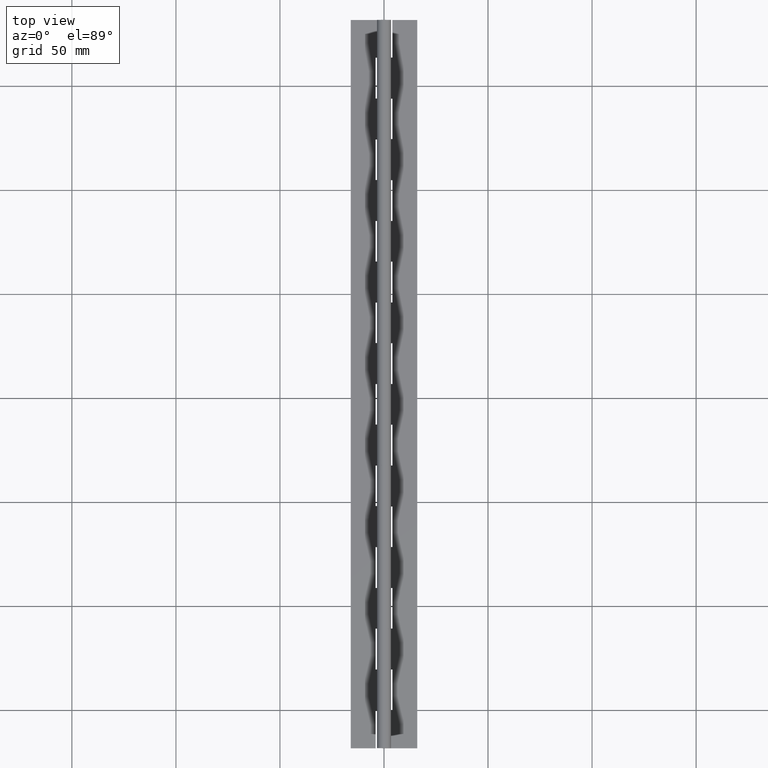
[diagram: clean part render]
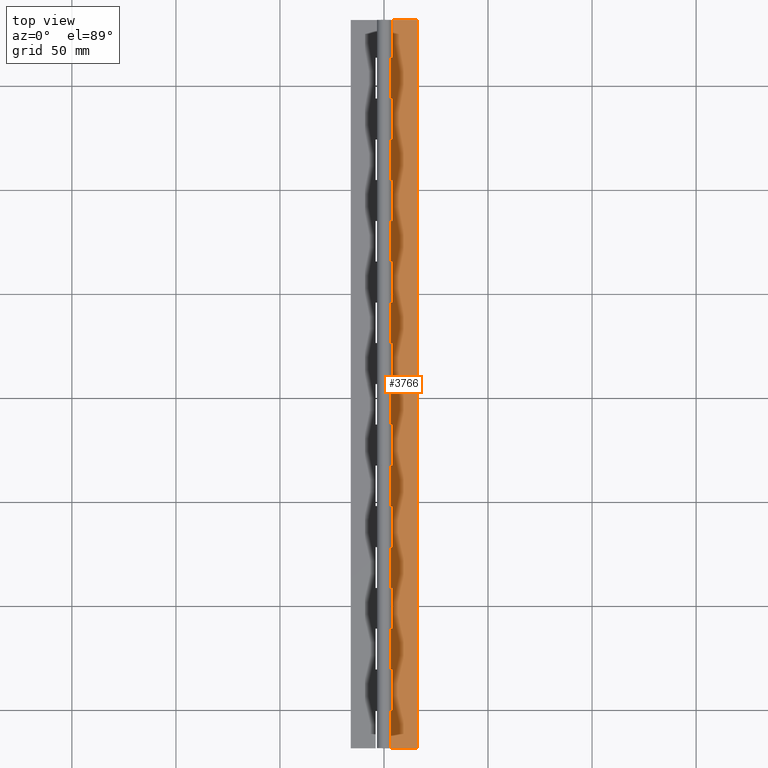
[diagram: same view with one face highlighted and labeled with its STEP entity id]
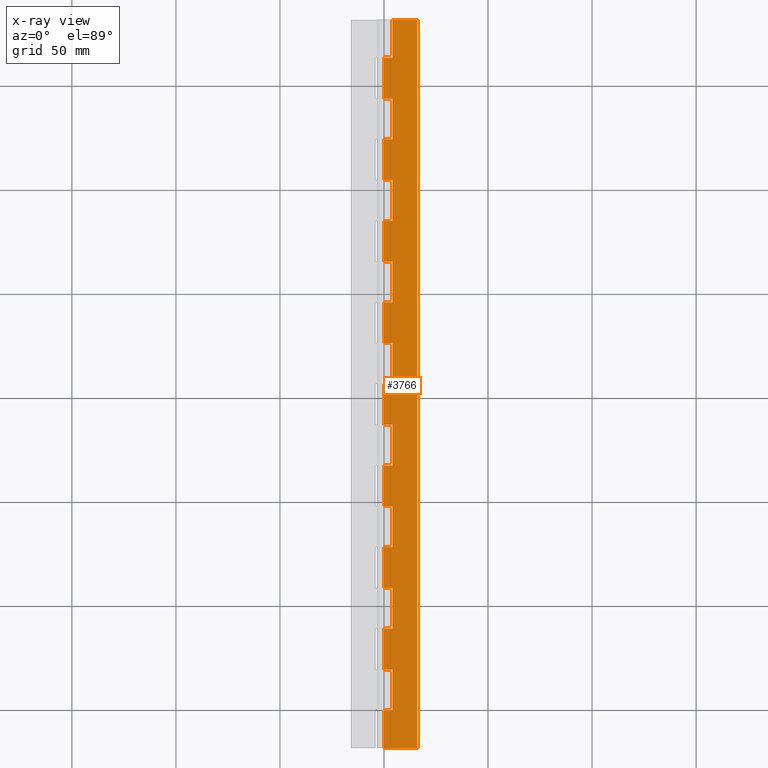
[diagram: x-ray of the same camera — body ghosted, the highlighted face saturated]
A machine part, top view. The second image highlights one B-rep face of the part: STEP entity #3766.
The next image is the same camera in x-ray: the body ghosted, the highlighted face saturated — about 0% of this face is hidden behind the body in this view.
In plain terms, the highlighted planar face has unit normal (-0, 0, -1).
Its self-contained STEP definition (entity closure, byte-faithful):
#13 = VECTOR ( 'NONE', #875, 1000.000000000000000 ) ;
#16 = CARTESIAN_POINT ( 'NONE',  ( 0.0000000000000000000, 58.80000000000001800, -1.750002187502756900 ) ) ;
#32 = CARTESIAN_POINT ( 'NONE',  ( 0.0000000000000000000, 215.6000000000000500, -1.750002187502756900 ) ) ;
#38 = DIRECTION ( 'NONE',  ( -1.000000000000000000, 0.0000000000000000000, 0.0000000000000000000 ) ) ;
#39 = ORIENTED_EDGE ( 'NONE', *, *, #408, .T. ) ;
#41 = CARTESIAN_POINT ( 'NONE',  ( 0.0000000000000000000, 39.20000000000001000, -1.750002187502756900 ) ) ;
#85 = CARTESIAN_POINT ( 'NONE',  ( 3.999999999999996400, 156.8000000000000100, -1.750002187502756900 ) ) ;
#87 = DIRECTION ( 'NONE',  ( -1.770125995894701000E-016, -1.000000000000000000, 4.797936125805254900E-033 ) ) ;
#99 = VERTEX_POINT ( 'NONE', #365 ) ;
#112 = DIRECTION ( 'NONE',  ( 1.000000000000000000, 0.0000000000000000000, -2.710505431213761100E-017 ) ) ;
#118 = LINE ( 'NONE', #2478, #3389 ) ;
#128 = CARTESIAN_POINT ( 'NONE',  ( 16.00000000000000000, -18.19999999999999900, -1.750002187502757400 ) ) ;
#129 = EDGE_CURVE ( 'NONE', #746, #3970, #3796, .T. ) ;
#173 = LINE ( 'NONE', #3303, #929 ) ;
#189 = VECTOR ( 'NONE', #1377, 1000.000000000000000 ) ;
#204 = VERTEX_POINT ( 'NONE', #1120 ) ;
#207 = EDGE_CURVE ( 'NONE', #1440, #3505, #440, .T. ) ;
#209 = LINE ( 'NONE', #2056, #1172 ) ;
#245 = VECTOR ( 'NONE', #3960, 1000.000000000000000 ) ;
#265 = CARTESIAN_POINT ( 'NONE',  ( 2.143125705451388300E-016, 137.2000000000000200, -1.750002187502756900 ) ) ;
#276 = LINE ( 'NONE', #1287, #189 ) ;
#285 = DIRECTION ( 'NONE',  ( -0.0000000000000000000, -1.000000000000000000, -0.0000000000000000000 ) ) ;
#287 = VERTEX_POINT ( 'NONE', #128 ) ;
#343 = CARTESIAN_POINT ( 'NONE',  ( 2.143125705451388300E-016, 78.40000000000002000, -1.750002187502756900 ) ) ;
#344 = VECTOR ( 'NONE', #87, 1000.000000000000000 ) ;
#355 = LINE ( 'NONE', #1726, #2000 ) ;
#357 = DIRECTION ( 'NONE',  ( -1.000000000000000000, 0.0000000000000000000, 2.710505431213761100E-017 ) ) ;
#365 = CARTESIAN_POINT ( 'NONE',  ( 0.0000000000000000000, 0.0000000000000000000, -1.750002187502757400 ) ) ;
#383 = ORIENTED_EDGE ( 'NONE', *, *, #1843, .T. ) ;
#391 = VECTOR ( 'NONE', #2022, 1000.000000000000000 ) ;
#399 = VERTEX_POINT ( 'NONE', #3004 ) ;
#408 = EDGE_CURVE ( 'NONE', #2912, #467, #3751, .T. ) ;
#420 = CARTESIAN_POINT ( 'NONE',  ( 16.00000000000000000, 313.6000000000000200, -1.750002187502757400 ) ) ;
#436 = DIRECTION ( 'NONE',  ( 1.000000000000000000, 0.0000000000000000000, -2.710505431213761100E-017 ) ) ;
#438 = EDGE_LOOP ( 'NONE', ( #1829, #2810, #1786, #3102, #529, #1121, #39, #497, #2566, #1819, #1918, #3976, #1984, #3416, #3629, #2251, #3314, #2853, #3130, #2191, #383, #501, #1783, #1929, #3358, #3188, #2276, #751, #3228, #645, #2054, #1204, #4054, #2330, #573, #1002, #1837, #1388 ) ) ;
#440 = LINE ( 'NONE', #1159, #2080 ) ;
#453 = LINE ( 'NONE', #2355, #344 ) ;
#462 = VERTEX_POINT ( 'NONE', #577 ) ;
#467 = VERTEX_POINT ( 'NONE', #1870 ) ;
#497 = ORIENTED_EDGE ( 'NONE', *, *, #3202, .T. ) ;
#499 = VERTEX_POINT ( 'NONE', #1198 ) ;
#500 = VERTEX_POINT ( 'NONE', #3397 ) ;
#501 = ORIENTED_EDGE ( 'NONE', *, *, #1758, .T. ) ;
#510 = VECTOR ( 'NONE', #1023, 1000.000000000000000 ) ;
#514 = LINE ( 'NONE', #3885, #3767 ) ;
#521 = LINE ( 'NONE', #2145, #2967 ) ;
#529 = ORIENTED_EDGE ( 'NONE', *, *, #1889, .T. ) ;
#549 = LINE ( 'NONE', #1990, #3090 ) ;
#573 = ORIENTED_EDGE ( 'NONE', *, *, #1439, .T. ) ;
#577 = CARTESIAN_POINT ( 'NONE',  ( 4.000000000000000000, 58.80000000000000400, -1.750002187502757200 ) ) ;
#578 = EDGE_CURVE ( 'NONE', #462, #3664, #3170, .T. ) ;
#645 = ORIENTED_EDGE ( 'NONE', *, *, #578, .T. ) ;
#670 = CARTESIAN_POINT ( 'NONE',  ( 2.143125705451388300E-016, 235.2000000000000200, -1.750002187502756900 ) ) ;
#679 = CARTESIAN_POINT ( 'NONE',  ( 2.143125705451388300E-016, 294.0000000000000600, -1.750002187502756900 ) ) ;
#699 = VERTEX_POINT ( 'NONE', #920 ) ;
#737 = VECTOR ( 'NONE', #1310, 1000.000000000000000 ) ;
#746 = VERTEX_POINT ( 'NONE', #2585 ) ;
#749 = DIRECTION ( 'NONE',  ( -1.770125995894701000E-016, -1.000000000000000000, 4.797936125805254900E-033 ) ) ;
#751 = ORIENTED_EDGE ( 'NONE', *, *, #776, .T. ) ;
#757 = DIRECTION ( 'NONE',  ( 1.000000000000000000, 0.0000000000000000000, -2.710505431213761100E-017 ) ) ;
#769 = DIRECTION ( 'NONE',  ( -1.000000000000000000, 0.0000000000000000000, 2.710505431213761100E-017 ) ) ;
#776 = EDGE_CURVE ( 'NONE', #3919, #833, #897, .T. ) ;
#787 = DIRECTION ( 'NONE',  ( -0.0000000000000000000, -1.000000000000000000, -0.0000000000000000000 ) ) ;
#827 = CARTESIAN_POINT ( 'NONE',  ( 2.143134577426118000E-016, 313.6000000000000200, -1.750002187502757400 ) ) ;
#833 = VERTEX_POINT ( 'NONE', #3155 ) ;
#853 = VERTEX_POINT ( 'NONE', #2049 ) ;
#862 = DIRECTION ( 'NONE',  ( -0.0000000000000000000, -1.000000000000000000, -0.0000000000000000000 ) ) ;
#875 = DIRECTION ( 'NONE',  ( -1.000000000000000000, 0.0000000000000000000, 2.710505431213761100E-017 ) ) ;
#897 = LINE ( 'NONE', #2574, #1864 ) ;
#908 = EDGE_CURVE ( 'NONE', #99, #1060, #2941, .T. ) ;
#920 = CARTESIAN_POINT ( 'NONE',  ( 16.00000000000000000, 331.8000000000000100, -1.750002187502757400 ) ) ;
#925 = CARTESIAN_POINT ( 'NONE',  ( 2.143125705451388300E-016, 156.8000000000000100, -1.750002187502756900 ) ) ;
#929 = VECTOR ( 'NONE', #436, 1000.000000000000000 ) ;
#934 = EDGE_CURVE ( 'NONE', #204, #1440, #2846, .T. ) ;
#963 = CARTESIAN_POINT ( 'NONE',  ( 0.0000000000000000000, 0.0000000000000000000, -1.750002187502756900 ) ) ;
#973 = LINE ( 'NONE', #3690, #3385 ) ;
#1002 = ORIENTED_EDGE ( 'NONE', *, *, #908, .T. ) ;
#1015 = CARTESIAN_POINT ( 'NONE',  ( 2.143134577426118000E-016, 313.6000000000000200, -1.750002187502757400 ) ) ;
#1018 = CARTESIAN_POINT ( 'NONE',  ( 0.0000000000000000000, 313.6000000000000200, -1.750002187502756900 ) ) ;
#1023 = DIRECTION ( 'NONE',  ( -0.0000000000000000000, -1.000000000000000000, -0.0000000000000000000 ) ) ;
#1029 = DIRECTION ( 'NONE',  ( -1.000000000000000000, 0.0000000000000000000, 2.710505431213761100E-017 ) ) ;
#1037 = CARTESIAN_POINT ( 'NONE',  ( 2.143134577426118000E-016, 313.6000000000000200, -1.750002187502757400 ) ) ;
#1041 = CARTESIAN_POINT ( 'NONE',  ( 4.000000000000010700, 313.6000000000000200, -1.750002187502757200 ) ) ;
#1045 = LINE ( 'NONE', #1015, #3444 ) ;
#1058 = VECTOR ( 'NONE', #2837, 1000.000000000000000 ) ;
#1059 = VERTEX_POINT ( 'NONE', #1397 ) ;
#1060 = VERTEX_POINT ( 'NONE', #4009 ) ;
#1080 = DIRECTION ( 'NONE',  ( 1.000000000000000000, 0.0000000000000000000, -2.710505431213761100E-017 ) ) ;
#1088 = EDGE_CURVE ( 'NONE', #833, #462, #1961, .T. ) ;
#1090 = VECTOR ( 'NONE', #285, 1000.000000000000000 ) ;
#1092 = EDGE_CURVE ( 'NONE', #3849, #1383, #2702, .T. ) ;
#1120 = CARTESIAN_POINT ( 'NONE',  ( 2.143125705451388300E-016, 215.6000000000000500, -1.750002187502756900 ) ) ;
#1121 = ORIENTED_EDGE ( 'NONE', *, *, #1153, .T. ) ;
#1122 = VECTOR ( 'NONE', #2980, 1000.000000000000000 ) ;
#1153 = EDGE_CURVE ( 'NONE', #499, #2912, #3404, .T. ) ;
#1159 = CARTESIAN_POINT ( 'NONE',  ( 4.000000000000017800, 313.6000000000000200, -1.750002187502757200 ) ) ;
#1172 = VECTOR ( 'NONE', #749, 1000.000000000000000 ) ;
#1198 = CARTESIAN_POINT ( 'NONE',  ( 4.000000000000000000, 294.0000000000000600, -1.750002187502757200 ) ) ;
#1199 = DIRECTION ( 'NONE',  ( -1.770125995894701000E-016, -1.000000000000000000, 4.797936125805254900E-033 ) ) ;
#1204 = ORIENTED_EDGE ( 'NONE', *, *, #3206, .T. ) ;
#1220 = LINE ( 'NONE', #420, #1122 ) ;
#1240 = CARTESIAN_POINT ( 'NONE',  ( 2.143125705451388300E-016, 176.4000000000000300, -1.750002187502756900 ) ) ;
#1241 = EDGE_CURVE ( 'NONE', #1690, #3849, #3211, .T. ) ;
#1287 = CARTESIAN_POINT ( 'NONE',  ( 2.143134577426118000E-016, 313.6000000000000200, -1.750002187502757400 ) ) ;
#1294 = DIRECTION ( 'NONE',  ( -0.0000000000000000000, -1.000000000000000000, -0.0000000000000000000 ) ) ;
#1310 = DIRECTION ( 'NONE',  ( -1.000000000000000000, 0.0000000000000000000, 2.710505431213761100E-017 ) ) ;
#1312 = LINE ( 'NONE', #3647, #245 ) ;
#1318 = CARTESIAN_POINT ( 'NONE',  ( 4.000000000000000000, 331.8000000000000100, -1.750002187502757400 ) ) ;
#1345 = EDGE_CURVE ( 'NONE', #3576, #3555, #276, .T. ) ;
#1361 = VECTOR ( 'NONE', #1029, 1000.000000000000000 ) ;
#1371 = EDGE_CURVE ( 'NONE', #3925, #204, #1045, .T. ) ;
#1377 = DIRECTION ( 'NONE',  ( -0.0000000000000000000, -1.000000000000000000, -0.0000000000000000000 ) ) ;
#1383 = VERTEX_POINT ( 'NONE', #3771 ) ;
#1385 = VECTOR ( 'NONE', #2120, 1000.000000000000000 ) ;
#1388 = ORIENTED_EDGE ( 'NONE', *, *, #3069, .F. ) ;
#1397 = CARTESIAN_POINT ( 'NONE',  ( 2.143125705451388300E-016, 39.20000000000001000, -1.750002187502756900 ) ) ;
#1411 = DIRECTION ( 'NONE',  ( 1.000000000000000000, 0.0000000000000000000, -2.710505431213761100E-017 ) ) ;
#1417 = DIRECTION ( 'NONE',  ( -1.000000000000000000, 0.0000000000000000000, 2.710505431213761100E-017 ) ) ;
#1439 = EDGE_CURVE ( 'NONE', #3552, #99, #4077, .T. ) ;
#1440 = VERTEX_POINT ( 'NONE', #3441 ) ;
#1467 = VECTOR ( 'NONE', #769, 1000.000000000000000 ) ;
#1477 = CARTESIAN_POINT ( 'NONE',  ( 0.0000000000000000000, 117.6000000000000100, -1.750002187502756900 ) ) ;
#1515 = DIRECTION ( 'NONE',  ( -1.770125995894701000E-016, -1.000000000000000000, 4.797936125805254900E-033 ) ) ;
#1526 = CARTESIAN_POINT ( 'NONE',  ( 2.143134577426118000E-016, 331.8000000000000100, -1.750002187502757400 ) ) ;
#1548 = CARTESIAN_POINT ( 'NONE',  ( 3.999999999999996400, 196.0000000000000300, -1.750002187502756900 ) ) ;
#1553 = DIRECTION ( 'NONE',  ( 1.000000000000000000, 0.0000000000000000000, 0.0000000000000000000 ) ) ;
#1630 = LINE ( 'NONE', #41, #3094 ) ;
#1655 = EDGE_CURVE ( 'NONE', #3945, #699, #4030, .T. ) ;
#1656 = CARTESIAN_POINT ( 'NONE',  ( 3.999999999999996400, 274.4000000000000300, -1.750002187502756900 ) ) ;
#1661 = PLANE ( 'NONE',  #2638 ) ;
#1690 = VERTEX_POINT ( 'NONE', #1831 ) ;
#1691 = CARTESIAN_POINT ( 'NONE',  ( 3.999999999999996400, 235.2000000000000200, -1.750002187502756900 ) ) ;
#1703 = CARTESIAN_POINT ( 'NONE',  ( 2.143134577426118000E-016, 313.6000000000000200, -1.750002187502757400 ) ) ;
#1726 = CARTESIAN_POINT ( 'NONE',  ( 0.0000000000000000000, 137.2000000000000200, -1.750002187502756900 ) ) ;
#1758 = EDGE_CURVE ( 'NONE', #399, #1690, #3648, .T. ) ;
#1766 = VECTOR ( 'NONE', #1947, 1000.000000000000000 ) ;
#1783 = ORIENTED_EDGE ( 'NONE', *, *, #1241, .T. ) ;
#1786 = ORIENTED_EDGE ( 'NONE', *, *, #2804, .T. ) ;
#1791 = CARTESIAN_POINT ( 'NONE',  ( 0.0000000000000000000, 156.8000000000000100, -1.750002187502756900 ) ) ;
#1819 = ORIENTED_EDGE ( 'NONE', *, *, #2710, .T. ) ;
#1829 = ORIENTED_EDGE ( 'NONE', *, *, #1655, .F. ) ;
#1831 = CARTESIAN_POINT ( 'NONE',  ( 3.999999999999996400, 117.6000000000000100, -1.750002187502756900 ) ) ;
#1833 = VECTOR ( 'NONE', #1080, 1000.000000000000000 ) ;
#1837 = ORIENTED_EDGE ( 'NONE', *, *, #3745, .F. ) ;
#1843 = EDGE_CURVE ( 'NONE', #3555, #399, #355, .T. ) ;
#1864 = VECTOR ( 'NONE', #1942, 1000.000000000000000 ) ;
#1870 = CARTESIAN_POINT ( 'NONE',  ( 2.143125705451388300E-016, 274.4000000000000300, -1.750002187502756900 ) ) ;
#1889 = EDGE_CURVE ( 'NONE', #3970, #499, #173, .T. ) ;
#1918 = ORIENTED_EDGE ( 'NONE', *, *, #2003, .T. ) ;
#1929 = ORIENTED_EDGE ( 'NONE', *, *, #1092, .T. ) ;
#1939 = CARTESIAN_POINT ( 'NONE',  ( 2.143134577426118000E-016, 313.6000000000000200, -1.750002187502757400 ) ) ;
#1942 = DIRECTION ( 'NONE',  ( -0.0000000000000000000, -1.000000000000000000, -0.0000000000000000000 ) ) ;
#1947 = DIRECTION ( 'NONE',  ( -1.770125995894701000E-016, -1.000000000000000000, 4.797936125805254900E-033 ) ) ;
#1961 = LINE ( 'NONE', #16, #2798 ) ;
#1984 = ORIENTED_EDGE ( 'NONE', *, *, #934, .T. ) ;
#1987 = CARTESIAN_POINT ( 'NONE',  ( 2.143134577426118000E-016, 313.6000000000000200, -1.750002187502757400 ) ) ;
#1990 = CARTESIAN_POINT ( 'NONE',  ( 16.00000000000000000, -18.19999999999999900, -1.750002187502757400 ) ) ;
#2000 = VECTOR ( 'NONE', #112, 1000.000000000000000 ) ;
#2003 = EDGE_CURVE ( 'NONE', #2959, #3925, #521, .T. ) ;
#2004 = DIRECTION ( 'NONE',  ( -1.000000000000000000, 0.0000000000000000000, 2.710505431213761100E-017 ) ) ;
#2007 = DIRECTION ( 'NONE',  ( -1.000000000000000000, 0.0000000000000000000, 2.710505431213761100E-017 ) ) ;
#2013 = VECTOR ( 'NONE', #2753, 1000.000000000000000 ) ;
#2022 = DIRECTION ( 'NONE',  ( -0.0000000000000000000, -1.000000000000000000, -0.0000000000000000000 ) ) ;
#2035 = EDGE_CURVE ( 'NONE', #1383, #2678, #118, .T. ) ;
#2046 = CARTESIAN_POINT ( 'NONE',  ( 2.143125705451388300E-016, 254.8000000000000400, -1.750002187502756900 ) ) ;
#2049 = CARTESIAN_POINT ( 'NONE',  ( 2.143125705451388300E-016, 196.0000000000000300, -1.750002187502756900 ) ) ;
#2052 = CARTESIAN_POINT ( 'NONE',  ( 3.999999999999996400, 313.6000000000000200, -1.750002187502756900 ) ) ;
#2054 = ORIENTED_EDGE ( 'NONE', *, *, #3965, .T. ) ;
#2056 = CARTESIAN_POINT ( 'NONE',  ( 3.999999999999996400, 313.6000000000000200, -1.750002187502756900 ) ) ;
#2058 = EDGE_CURVE ( 'NONE', #500, #3919, #3298, .T. ) ;
#2080 = VECTOR ( 'NONE', #1199, 1000.000000000000000 ) ;
#2120 = DIRECTION ( 'NONE',  ( -1.000000000000000000, 0.0000000000000000000, 2.710505431213761100E-017 ) ) ;
#2128 = VECTOR ( 'NONE', #757, 1000.000000000000000 ) ;
#2130 = VERTEX_POINT ( 'NONE', #1240 ) ;
#2144 = LINE ( 'NONE', #1703, #391 ) ;
#2145 = CARTESIAN_POINT ( 'NONE',  ( 0.0000000000000000000, 235.2000000000000200, -1.750002187502756900 ) ) ;
#2165 = CARTESIAN_POINT ( 'NONE',  ( 4.000000000000045300, 313.6000000000000200, -1.750002187502757200 ) ) ;
#2182 = FACE_OUTER_BOUND ( 'NONE', #438, .T. ) ;
#2191 = ORIENTED_EDGE ( 'NONE', *, *, #1345, .T. ) ;
#2228 = CARTESIAN_POINT ( 'NONE',  ( 0.0000000000000000000, 254.8000000000000400, -1.750002187502756900 ) ) ;
#2251 = ORIENTED_EDGE ( 'NONE', *, *, #2470, .T. ) ;
#2270 = VECTOR ( 'NONE', #862, 1000.000000000000000 ) ;
#2276 = ORIENTED_EDGE ( 'NONE', *, *, #2058, .T. ) ;
#2330 = ORIENTED_EDGE ( 'NONE', *, *, #2368, .T. ) ;
#2341 = LINE ( 'NONE', #1791, #1385 ) ;
#2348 = EDGE_CURVE ( 'NONE', #4045, #3576, #2341, .T. ) ;
#2349 = CARTESIAN_POINT ( 'NONE',  ( 4.000000000000000000, 254.8000000000000400, -1.750002187502757200 ) ) ;
#2355 = CARTESIAN_POINT ( 'NONE',  ( 4.000000000000024000, 313.6000000000000200, -1.750002187502757200 ) ) ;
#2366 = VECTOR ( 'NONE', #1515, 1000.000000000000000 ) ;
#2368 = EDGE_CURVE ( 'NONE', #3707, #3552, #3862, .T. ) ;
#2470 = EDGE_CURVE ( 'NONE', #853, #2130, #973, .T. ) ;
#2478 = CARTESIAN_POINT ( 'NONE',  ( 0.0000000000000000000, 98.00000000000002800, -1.750002187502756900 ) ) ;
#2536 = LINE ( 'NONE', #1041, #4059 ) ;
#2566 = ORIENTED_EDGE ( 'NONE', *, *, #3588, .T. ) ;
#2567 = LINE ( 'NONE', #2691, #1833 ) ;
#2574 = CARTESIAN_POINT ( 'NONE',  ( 2.143134577426118000E-016, 313.6000000000000200, -1.750002187502757400 ) ) ;
#2577 = CARTESIAN_POINT ( 'NONE',  ( 4.000000000000000000, 19.60000000000000100, -1.750002187502757200 ) ) ;
#2585 = CARTESIAN_POINT ( 'NONE',  ( 2.143125705451388300E-016, 313.6000000000000200, -1.750002187502756900 ) ) ;
#2636 = DIRECTION ( 'NONE',  ( -1.770125995894701000E-016, -1.000000000000000000, 4.797936125805254900E-033 ) ) ;
#2638 = AXIS2_PLACEMENT_3D ( 'NONE', #1018, #3832, #2004 ) ;
#2678 = VERTEX_POINT ( 'NONE', #3217 ) ;
#2682 = CARTESIAN_POINT ( 'NONE',  ( 0.0000000000000000000, 19.60000000000000500, -1.750002187502756900 ) ) ;
#2691 = CARTESIAN_POINT ( 'NONE',  ( 0.0000000000000000000, 176.4000000000000300, -1.750002187502756900 ) ) ;
#2702 = LINE ( 'NONE', #1939, #1090 ) ;
#2710 = EDGE_CURVE ( 'NONE', #2724, #2959, #2536, .T. ) ;
#2724 = VERTEX_POINT ( 'NONE', #2349 ) ;
#2745 = DIRECTION ( 'NONE',  ( -1.770125995894701000E-016, -1.000000000000000000, 4.797936125805254900E-033 ) ) ;
#2750 = DIRECTION ( 'NONE',  ( -1.000000000000000000, 0.0000000000000000000, 2.710505431213761100E-017 ) ) ;
#2753 = DIRECTION ( 'NONE',  ( -1.770125995894701000E-016, -1.000000000000000000, 4.797936125805254900E-033 ) ) ;
#2782 = VERTEX_POINT ( 'NONE', #2052 ) ;
#2783 = CARTESIAN_POINT ( 'NONE',  ( 4.000000000000031100, 313.6000000000000200, -1.750002187502757200 ) ) ;
#2788 = DIRECTION ( 'NONE',  ( 1.000000000000000000, 0.0000000000000000000, -2.710505431213761100E-017 ) ) ;
#2798 = VECTOR ( 'NONE', #3185, 1000.000000000000000 ) ;
#2804 = EDGE_CURVE ( 'NONE', #2782, #746, #514, .T. ) ;
#2810 = ORIENTED_EDGE ( 'NONE', *, *, #3285, .T. ) ;
#2837 = DIRECTION ( 'NONE',  ( 1.000000000000000000, 0.0000000000000000000, -2.710505431213761100E-017 ) ) ;
#2846 = LINE ( 'NONE', #32, #2128 ) ;
#2853 = ORIENTED_EDGE ( 'NONE', *, *, #3041, .T. ) ;
#2854 = LINE ( 'NONE', #2228, #1058 ) ;
#2857 = CARTESIAN_POINT ( 'NONE',  ( 0.0000000000000000000, 274.4000000000000300, -1.750002187502756900 ) ) ;
#2912 = VERTEX_POINT ( 'NONE', #1656 ) ;
#2941 = LINE ( 'NONE', #1987, #3748 ) ;
#2956 = LINE ( 'NONE', #1037, #510 ) ;
#2959 = VERTEX_POINT ( 'NONE', #1691 ) ;
#2964 = VECTOR ( 'NONE', #2745, 1000.000000000000000 ) ;
#2967 = VECTOR ( 'NONE', #2750, 1000.000000000000000 ) ;
#2980 = DIRECTION ( 'NONE',  ( -0.0000000000000000000, -1.000000000000000000, -0.0000000000000000000 ) ) ;
#3004 = CARTESIAN_POINT ( 'NONE',  ( 4.000000000000000000, 137.2000000000000200, -1.750002187502757200 ) ) ;
#3005 = VECTOR ( 'NONE', #2007, 1000.000000000000000 ) ;
#3014 = VERTEX_POINT ( 'NONE', #2046 ) ;
#3041 = EDGE_CURVE ( 'NONE', #3197, #4045, #453, .T. ) ;
#3069 = EDGE_CURVE ( 'NONE', #699, #287, #1220, .T. ) ;
#3070 = EDGE_CURVE ( 'NONE', #3724, #3707, #3624, .T. ) ;
#3090 = VECTOR ( 'NONE', #38, 1000.000000000000000 ) ;
#3094 = VECTOR ( 'NONE', #357, 1000.000000000000000 ) ;
#3102 = ORIENTED_EDGE ( 'NONE', *, *, #129, .T. ) ;
#3130 = ORIENTED_EDGE ( 'NONE', *, *, #2348, .T. ) ;
#3155 = CARTESIAN_POINT ( 'NONE',  ( 2.143125705451388300E-016, 58.80000000000001800, -1.750002187502756900 ) ) ;
#3170 = LINE ( 'NONE', #2165, #2366 ) ;
#3185 = DIRECTION ( 'NONE',  ( 1.000000000000000000, 0.0000000000000000000, -2.710505431213761100E-017 ) ) ;
#3188 = ORIENTED_EDGE ( 'NONE', *, *, #3394, .T. ) ;
#3197 = VERTEX_POINT ( 'NONE', #3649 ) ;
#3202 = EDGE_CURVE ( 'NONE', #467, #3014, #2956, .T. ) ;
#3206 = EDGE_CURVE ( 'NONE', #1059, #3724, #2144, .T. ) ;
#3207 = VECTOR ( 'NONE', #1553, 1000.000000000000000 ) ;
#3211 = LINE ( 'NONE', #1477, #1467 ) ;
#3217 = CARTESIAN_POINT ( 'NONE',  ( 4.000000000000000000, 98.00000000000001400, -1.750002187502757200 ) ) ;
#3228 = ORIENTED_EDGE ( 'NONE', *, *, #1088, .T. ) ;
#3285 = EDGE_CURVE ( 'NONE', #3945, #2782, #209, .T. ) ;
#3298 = LINE ( 'NONE', #3695, #13 ) ;
#3303 = CARTESIAN_POINT ( 'NONE',  ( 0.0000000000000000000, 294.0000000000000600, -1.750002187502756900 ) ) ;
#3314 = ORIENTED_EDGE ( 'NONE', *, *, #3315, .T. ) ;
#3315 = EDGE_CURVE ( 'NONE', #2130, #3197, #2567, .T. ) ;
#3358 = ORIENTED_EDGE ( 'NONE', *, *, #2035, .T. ) ;
#3385 = VECTOR ( 'NONE', #4003, 1000.000000000000000 ) ;
#3389 = VECTOR ( 'NONE', #2788, 1000.000000000000000 ) ;
#3394 = EDGE_CURVE ( 'NONE', #2678, #500, #1312, .T. ) ;
#3397 = CARTESIAN_POINT ( 'NONE',  ( 3.999999999999996400, 78.40000000000000600, -1.750002187502756900 ) ) ;
#3404 = LINE ( 'NONE', #4073, #1766 ) ;
#3416 = ORIENTED_EDGE ( 'NONE', *, *, #207, .T. ) ;
#3441 = CARTESIAN_POINT ( 'NONE',  ( 4.000000000000000000, 215.6000000000000500, -1.750002187502757200 ) ) ;
#3444 = VECTOR ( 'NONE', #1294, 1000.000000000000000 ) ;
#3485 = CARTESIAN_POINT ( 'NONE',  ( 2.143134577426118000E-016, 19.60000000000000500, -1.750002187502757400 ) ) ;
#3505 = VERTEX_POINT ( 'NONE', #1548 ) ;
#3519 = VECTOR ( 'NONE', #1411, 1000.000000000000000 ) ;
#3552 = VERTEX_POINT ( 'NONE', #4046 ) ;
#3555 = VERTEX_POINT ( 'NONE', #265 ) ;
#3576 = VERTEX_POINT ( 'NONE', #925 ) ;
#3588 = EDGE_CURVE ( 'NONE', #3014, #2724, #2854, .T. ) ;
#3624 = LINE ( 'NONE', #2682, #3519 ) ;
#3629 = ORIENTED_EDGE ( 'NONE', *, *, #4012, .T. ) ;
#3641 = CARTESIAN_POINT ( 'NONE',  ( 4.000000000000052400, 313.6000000000000200, -1.750002187502757200 ) ) ;
#3647 = CARTESIAN_POINT ( 'NONE',  ( 4.000000000000038200, 313.6000000000000200, -1.750002187502757200 ) ) ;
#3648 = LINE ( 'NONE', #2783, #2013 ) ;
#3649 = CARTESIAN_POINT ( 'NONE',  ( 4.000000000000000000, 176.4000000000000300, -1.750002187502757200 ) ) ;
#3664 = VERTEX_POINT ( 'NONE', #4084 ) ;
#3690 = CARTESIAN_POINT ( 'NONE',  ( 2.143134577426118000E-016, 313.6000000000000200, -1.750002187502757400 ) ) ;
#3695 = CARTESIAN_POINT ( 'NONE',  ( 0.0000000000000000000, 78.40000000000002000, -1.750002187502756900 ) ) ;
#3707 = VERTEX_POINT ( 'NONE', #2577 ) ;
#3724 = VERTEX_POINT ( 'NONE', #3485 ) ;
#3745 = EDGE_CURVE ( 'NONE', #287, #1060, #549, .T. ) ;
#3748 = VECTOR ( 'NONE', #787, 1000.000000000000000 ) ;
#3751 = LINE ( 'NONE', #2857, #1361 ) ;
#3766 = ADVANCED_FACE ( 'NONE', ( #2182 ), #1661, .F. ) ;
#3767 = VECTOR ( 'NONE', #1417, 1000.000000000000000 ) ;
#3771 = CARTESIAN_POINT ( 'NONE',  ( 2.143125705451388300E-016, 98.00000000000002800, -1.750002187502756900 ) ) ;
#3796 = LINE ( 'NONE', #827, #2270 ) ;
#3832 = DIRECTION ( 'NONE',  ( -2.710505431213761100E-017, 0.0000000000000000000, -1.000000000000000000 ) ) ;
#3835 = CARTESIAN_POINT ( 'NONE',  ( 0.0000000000000000000, 196.0000000000000300, -1.750002187502756900 ) ) ;
#3849 = VERTEX_POINT ( 'NONE', #4086 ) ;
#3862 = LINE ( 'NONE', #3641, #2964 ) ;
#3885 = CARTESIAN_POINT ( 'NONE',  ( 0.0000000000000000000, 313.6000000000000200, -1.750002187502756900 ) ) ;
#3902 = LINE ( 'NONE', #3835, #3005 ) ;
#3919 = VERTEX_POINT ( 'NONE', #343 ) ;
#3925 = VERTEX_POINT ( 'NONE', #670 ) ;
#3945 = VERTEX_POINT ( 'NONE', #1318 ) ;
#3960 = DIRECTION ( 'NONE',  ( -1.770125995894701000E-016, -1.000000000000000000, 4.797936125805254900E-033 ) ) ;
#3965 = EDGE_CURVE ( 'NONE', #3664, #1059, #1630, .T. ) ;
#3970 = VERTEX_POINT ( 'NONE', #679 ) ;
#3976 = ORIENTED_EDGE ( 'NONE', *, *, #1371, .T. ) ;
#4003 = DIRECTION ( 'NONE',  ( -0.0000000000000000000, -1.000000000000000000, -0.0000000000000000000 ) ) ;
#4009 = CARTESIAN_POINT ( 'NONE',  ( 2.143134577426118000E-016, -18.19999999999999900, -1.750002187502757400 ) ) ;
#4012 = EDGE_CURVE ( 'NONE', #3505, #853, #3902, .T. ) ;
#4030 = LINE ( 'NONE', #1526, #3207 ) ;
#4045 = VERTEX_POINT ( 'NONE', #85 ) ;
#4046 = CARTESIAN_POINT ( 'NONE',  ( 3.999999999999996400, 0.0000000000000000000, -1.750002187502756900 ) ) ;
#4054 = ORIENTED_EDGE ( 'NONE', *, *, #3070, .T. ) ;
#4059 = VECTOR ( 'NONE', #2636, 1000.000000000000000 ) ;
#4073 = CARTESIAN_POINT ( 'NONE',  ( 4.000000000000003600, 313.6000000000000200, -1.750002187502757200 ) ) ;
#4077 = LINE ( 'NONE', #963, #737 ) ;
#4084 = CARTESIAN_POINT ( 'NONE',  ( 3.999999999999996400, 39.20000000000000300, -1.750002187502756900 ) ) ;
#4086 = CARTESIAN_POINT ( 'NONE',  ( 2.143125705451388300E-016, 117.6000000000000100, -1.750002187502756900 ) ) ;